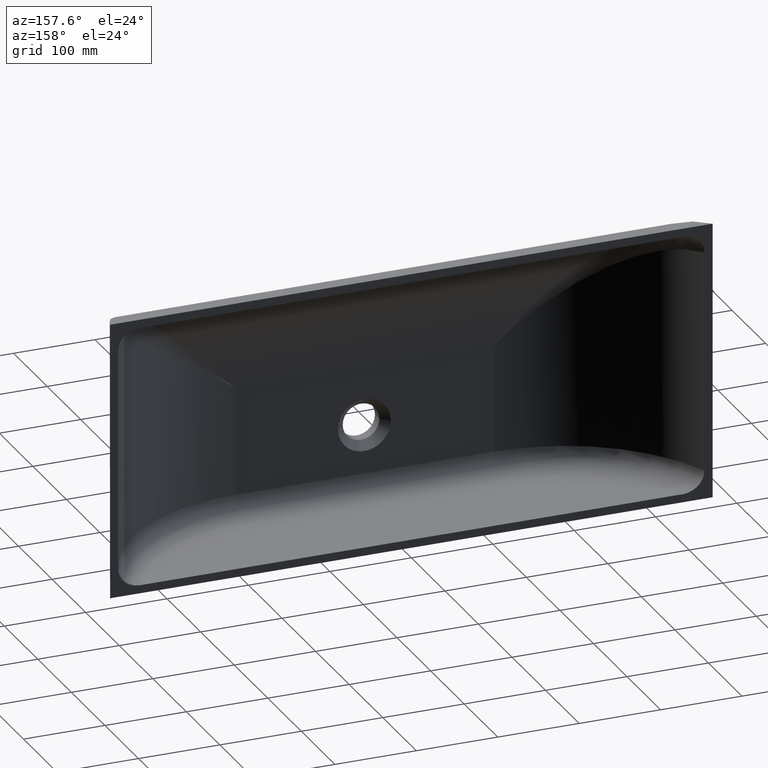
[diagram: clean part render]
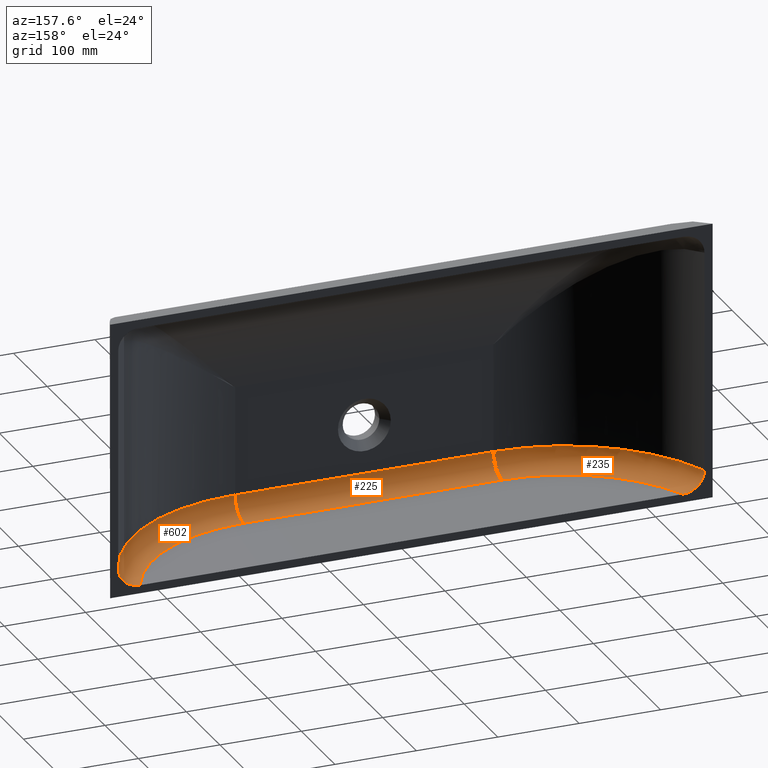
[diagram: same view with one multi-face feature highlighted, each face labeled with its STEP entity id]
A machine part, auxiliary view. The highlighted faces form ONE feature: a constant-radius fillet chain: 3 tangent blend faces with common blend radius 25 mm. The faces share edges in the B-rep.
Their STEP definitions:
[1] entity #235 (Torus):
#5 = ORIENTED_EDGE ( 'NONE', *, *, #909, .F. ) ;
#45 = CARTESIAN_POINT ( 'NONE',  ( -158.6406308044475111, -140.0000000000000000, -60.00000000000000000 ) ) ;
#48 = CARTESIAN_POINT ( 'NONE',  ( -158.6406308044475111, -114.9999999999999858, -60.00000000000000000 ) ) ;
#52 = CIRCLE ( 'NONE', #173, 25.00000000000000000 ) ;
#62 = CARTESIAN_POINT ( 'NONE',  ( -359.0399139386469187, 0.0000000000000000000, -66.70083775692104666 ) ) ;
#72 = CARTESIAN_POINT ( 'NONE',  ( -351.1611666309310067, -0.0000000000000000000, -78.58841101999801992 ) ) ;
#121 = CIRCLE ( 'NONE', #777, 214.8056984386814463 ) ;
#164 = DIRECTION ( 'NONE',  ( 0.0000000000000000000, 0.0000000000000000000, -1.000000000000000000 ) ) ;
#172 = CARTESIAN_POINT ( 'NONE',  ( -359.9999999999998863, 0.0000000000000000000, -61.71661987296787544 ) ) ;
#173 = AXIS2_PLACEMENT_3D ( 'NONE', #48, #501, #955 ) ;
#183 = CARTESIAN_POINT ( 'NONE',  ( -353.8854998833139689, 0.0000000000000000000, -75.92129165977740968 ) ) ;
#191 = CARTESIAN_POINT ( 'NONE',  ( -336.4902040733991271, -0.0000000000000000000, -84.85252241376277027 ) ) ;
#235 = ADVANCED_FACE ( 'NONE', ( #1285 ), #497, .F. ) ;
#271 = CARTESIAN_POINT ( 'NONE',  ( -333.0834886143811104, 0.0000000000000000000, -85.00000000000001421 ) ) ;
#292 = CARTESIAN_POINT ( 'NONE',  ( -354.9746761880625741, -0.0000000000000000000, -74.60223992431073725 ) ) ;
#300 = CARTESIAN_POINT ( 'NONE',  ( -341.4859861520152435, 0.0000000000000000000, -83.78178120603477907 ) ) ;
#311 = DIRECTION ( 'NONE',  ( -0.0000000000000000000, -0.0000000000000000000, 1.000000000000000000 ) ) ;
#362 = CARTESIAN_POINT ( 'NONE',  ( -158.6406308044474827, 74.80569843868146052, -60.00000000000000000 ) ) ;
#401 = CARTESIAN_POINT ( 'NONE',  ( -358.0000461229284952, 0.0000000000000000000, -69.50511991093881647 ) ) ;
#412 = CARTESIAN_POINT ( 'NONE',  ( -346.2177575054271301, -0.0000000000000000000, -81.91599004461072298 ) ) ;
#427 = VERTEX_POINT ( 'NONE', #926 ) ;
#463 = CARTESIAN_POINT ( 'NONE',  ( -359.9999999999999432, 0.0000000000000000000, -60.00000000000000000 ) ) ;
#497 = TOROIDAL_SURFACE ( 'NONE', #555, 189.8056984386814179, 25.00000000000000000 ) ;
#501 = DIRECTION ( 'NONE',  ( -1.000000000000000000, 0.0000000000000000000, -0.0000000000000000000 ) ) ;
#512 = CARTESIAN_POINT ( 'NONE',  ( -358.6306472494943591, -0.0000000000000000000, -67.91769269533502040 ) ) ;
#521 = CARTESIAN_POINT ( 'NONE',  ( -350.5026815536238587, 0.0000000000000000000, -79.12308114760142530 ) ) ;
#555 = AXIS2_PLACEMENT_3D ( 'NONE', #1179, #164, #615 ) ;
#564 = CIRCLE ( 'NONE', #768, 189.8056984386814179 ) ;
#615 = DIRECTION ( 'NONE',  ( -1.000000000000000000, 0.0000000000000000000, 0.0000000000000000000 ) ) ;
#621 = CARTESIAN_POINT ( 'NONE',  ( -359.8134236729908935, -0.0000000000000000000, -63.40105010403754449 ) ) ;
#631 = CARTESIAN_POINT ( 'NONE',  ( -353.0248573223331618, -0.0000000000000000000, -76.86222272598094207 ) ) ;
#634 = EDGE_CURVE ( 'NONE', #427, #1442, #52, .T. ) ;
#640 = CARTESIAN_POINT ( 'NONE',  ( -334.7967668173501465, -0.0000000000000000000, -84.99999999999918998 ) ) ;
#744 = CARTESIAN_POINT ( 'NONE',  ( -354.7096248752375232, 0.0000000000000000000, -74.94044059489576171 ) ) ;
#754 = CARTESIAN_POINT ( 'NONE',  ( -339.8325795105009206, -0.0000000000000000000, -84.22680600285718810 ) ) ;
#764 = DIRECTION ( 'NONE',  ( -1.000000000000000000, 0.0000000000000000000, 0.0000000000000000000 ) ) ;
#768 = AXIS2_PLACEMENT_3D ( 'NONE', #1318, #311, #764 ) ;
#777 = AXIS2_PLACEMENT_3D ( 'NONE', #362, #820, #1262 ) ;
#807 = B_SPLINE_CURVE_WITH_KNOTS ( 'NONE', 3,
 ( #1184, #172, #621, #1082, #62, #512, #968, #1402, #401, #857, #1298, #292, #744, #1193, #183, #631, #1092, #72, #521, #976, #1410, #412, #866, #1308, #300, #754, #1202, #191, #640, #1101 ),
 .UNSPECIFIED., .F., .F.,
 ( 4, 2, 2, 2, 2, 2, 2, 2, 2, 2, 2, 2, 2, 2, 4 ),
 ( 0.0000000000000000000, 0.005074884174763193492, 0.007612326262144790238, 0.008881047305835615066, 0.01014976834952643903, 0.01522465252428985109, 0.01649337356798069587, 0.01776209461167154238, 0.02029953669905323194, 0.02283697878643492149, 0.02537442087381661451, 0.03044930504857997280, 0.03298674713596164154, 0.03552418922334332069, 0.04059907339810666510 ),
 .UNSPECIFIED. ) ;
#820 = DIRECTION ( 'NONE',  ( 0.0000000000000000000, 0.0000000000000000000, -1.000000000000000000 ) ) ;
#844 = EDGE_CURVE ( 'NONE', #1442, #1301, #121, .T. ) ;
#857 = CARTESIAN_POINT ( 'NONE',  ( -357.1130189481752382, -0.0000000000000000000, -71.43280911382289844 ) ) ;
#866 = CARTESIAN_POINT ( 'NONE',  ( -344.6882239388528433, 0.0000000000000000000, -82.64231516237474295 ) ) ;
#871 = ORIENTED_EDGE ( 'NONE', *, *, #634, .F. ) ;
#909 = EDGE_CURVE ( 'NONE', #1301, #1414, #807, .T. ) ;
#926 = CARTESIAN_POINT ( 'NONE',  ( -158.6406308044475111, -114.9999999999999858, -85.00000000000001421 ) ) ;
#955 = DIRECTION ( 'NONE',  ( 0.0000000000000000000, 0.0000000000000000000, 1.000000000000000000 ) ) ;
#968 = CARTESIAN_POINT ( 'NONE',  ( -358.4827404581737369, 0.0000000000000000000, -68.32104275294210538 ) ) ;
#976 = CARTESIAN_POINT ( 'NONE',  ( -349.1300258887967516, -0.0000000000000000000, -80.13154753985712375 ) ) ;
#1076 = EDGE_CURVE ( 'NONE', #1414, #427, #564, .T. ) ;
#1082 = CARTESIAN_POINT ( 'NONE',  ( -359.2668976767018307, -0.0000000000000000000, -65.88168887244114558 ) ) ;
#1092 = CARTESIAN_POINT ( 'NONE',  ( -352.4222519565458924, 0.0000000000000000000, -77.45797901204406344 ) ) ;
#1096 = ORIENTED_EDGE ( 'NONE', *, *, #1076, .F. ) ;
#1101 = CARTESIAN_POINT ( 'NONE',  ( -333.0834886143811104, 0.0000000000000000000, -85.00000000000001421 ) ) ;
#1179 = CARTESIAN_POINT ( 'NONE',  ( -158.6406308044474827, 74.80569843868146052, -60.00000000000000000 ) ) ;
#1184 = CARTESIAN_POINT ( 'NONE',  ( -359.9999999999999432, 0.0000000000000000000, -60.00000000000000000 ) ) ;
#1193 = CARTESIAN_POINT ( 'NONE',  ( -354.1651568503348244, -0.0000000000000000000, -75.59975101753414606 ) ) ;
#1202 = CARTESIAN_POINT ( 'NONE',  ( -339.0007146480575670, 0.0000000000000000000, -84.41095270668880346 ) ) ;
#1262 = DIRECTION ( 'NONE',  ( -1.000000000000000000, 0.0000000000000000000, 0.0000000000000000000 ) ) ;
#1285 = FACE_OUTER_BOUND ( 'NONE', #1337, .T. ) ;
#1298 = CARTESIAN_POINT ( 'NONE',  ( -356.2478330782238345, -0.0000000000000000000, -72.88868853015544857 ) ) ;
#1301 = VERTEX_POINT ( 'NONE', #463 ) ;
#1308 = CARTESIAN_POINT ( 'NONE',  ( -342.2994484719005754, -0.0000000000000000000, -83.52293748964234510 ) ) ;
#1318 = CARTESIAN_POINT ( 'NONE',  ( -158.6406308044474827, 74.80569843868146052, -85.00000000000001421 ) ) ;
#1337 = EDGE_LOOP ( 'NONE', ( #5, #1409, #871, #1096 ) ) ;
#1402 = CARTESIAN_POINT ( 'NONE',  ( -358.1676376970904130, -0.0000000000000000000, -69.11413955050241498 ) ) ;
#1409 = ORIENTED_EDGE ( 'NONE', *, *, #844, .F. ) ;
#1410 = CARTESIAN_POINT ( 'NONE',  ( -348.4127165787937201, 0.0000000000000000000, -80.60687892571208124 ) ) ;
#1414 = VERTEX_POINT ( 'NONE', #271 ) ;
#1442 = VERTEX_POINT ( 'NONE', #45 ) ;
[2] entity #225 (Cylinder):
#2 = VECTOR ( 'NONE', #633, 1000.000000000000000 ) ;
#34 = EDGE_CURVE ( 'NONE', #427, #319, #1195, .T. ) ;
#44 = DIRECTION ( 'NONE',  ( 0.0000000000000000000, 1.000000000000000000, 0.0000000000000000000 ) ) ;
#45 = CARTESIAN_POINT ( 'NONE',  ( -158.6406308044475111, -140.0000000000000000, -60.00000000000000000 ) ) ;
#48 = CARTESIAN_POINT ( 'NONE',  ( -158.6406308044475111, -114.9999999999999858, -60.00000000000000000 ) ) ;
#52 = CIRCLE ( 'NONE', #173, 25.00000000000000000 ) ;
#75 = EDGE_LOOP ( 'NONE', ( #1181, #1002, #1354, #1071 ) ) ;
#154 = CYLINDRICAL_SURFACE ( 'NONE', #450, 24.99999999999999289 ) ;
#173 = AXIS2_PLACEMENT_3D ( 'NONE', #48, #501, #955 ) ;
#184 = CARTESIAN_POINT ( 'NONE',  ( 500000.0000000000582, -114.9999999999069473, -85.00000000000001421 ) ) ;
#225 = ADVANCED_FACE ( 'NONE', ( #1171 ), #154, .F. ) ;
#248 = DIRECTION ( 'NONE',  ( -1.000000000000000000, -1.861033808554953347E-16, -0.0000000000000000000 ) ) ;
#316 = DIRECTION ( 'NONE',  ( 1.000000000000000000, 0.0000000000000000000, 0.0000000000000000000 ) ) ;
#319 = VERTEX_POINT ( 'NONE', #535 ) ;
#427 = VERTEX_POINT ( 'NONE', #926 ) ;
#450 = AXIS2_PLACEMENT_3D ( 'NONE', #605, #1064, #44 ) ;
#501 = DIRECTION ( 'NONE',  ( -1.000000000000000000, 0.0000000000000000000, -0.0000000000000000000 ) ) ;
#535 = CARTESIAN_POINT ( 'NONE',  ( 158.6406308044475111, -114.9999999999999858, -85.00000000000001421 ) ) ;
#605 = CARTESIAN_POINT ( 'NONE',  ( 500000.0000000000582, -114.9999999999069473, -60.00000000000000000 ) ) ;
#616 = CIRCLE ( 'NONE', #1249, 24.99999999999999289 ) ;
#633 = DIRECTION ( 'NONE',  ( 1.000000000000000000, 1.861033808554954086E-16, 0.0000000000000000000 ) ) ;
#634 = EDGE_CURVE ( 'NONE', #427, #1442, #52, .T. ) ;
#679 = EDGE_CURVE ( 'NONE', #991, #319, #616, .T. ) ;
#767 = EDGE_CURVE ( 'NONE', #991, #1442, #812, .T. ) ;
#772 = DIRECTION ( 'NONE',  ( 0.0000000000000000000, 0.0000000000000000000, -1.000000000000000000 ) ) ;
#812 = LINE ( 'NONE', #1254, #841 ) ;
#841 = VECTOR ( 'NONE', #248, 1000.000000000000000 ) ;
#926 = CARTESIAN_POINT ( 'NONE',  ( -158.6406308044475111, -114.9999999999999858, -85.00000000000001421 ) ) ;
#955 = DIRECTION ( 'NONE',  ( 0.0000000000000000000, 0.0000000000000000000, 1.000000000000000000 ) ) ;
#970 = CARTESIAN_POINT ( 'NONE',  ( 158.6406308044475111, -140.0000000000000000, -60.00000000000000000 ) ) ;
#991 = VERTEX_POINT ( 'NONE', #970 ) ;
#1002 = ORIENTED_EDGE ( 'NONE', *, *, #767, .F. ) ;
#1064 = DIRECTION ( 'NONE',  ( 1.000000000000000000, 1.861033808554953593E-16, 0.0000000000000000000 ) ) ;
#1071 = ORIENTED_EDGE ( 'NONE', *, *, #34, .F. ) ;
#1171 = FACE_OUTER_BOUND ( 'NONE', #75, .T. ) ;
#1181 = ORIENTED_EDGE ( 'NONE', *, *, #634, .T. ) ;
#1195 = LINE ( 'NONE', #184, #2 ) ;
#1249 = AXIS2_PLACEMENT_3D ( 'NONE', #1323, #316, #772 ) ;
#1254 = CARTESIAN_POINT ( 'NONE',  ( -158.6406308044474827, -140.0000000000000000, -60.00000000000000000 ) ) ;
#1323 = CARTESIAN_POINT ( 'NONE',  ( 158.6406308044475111, -115.0000000000000426, -60.00000000000000000 ) ) ;
#1354 = ORIENTED_EDGE ( 'NONE', *, *, #679, .T. ) ;
#1442 = VERTEX_POINT ( 'NONE', #45 ) ;
[3] entity #602 (Torus):
#29 = CARTESIAN_POINT ( 'NONE',  ( 348.3895411528305317, -0.0000000000000000000, -80.62143452831799095 ) ) ;
#38 = CARTESIAN_POINT ( 'NONE',  ( 359.0686564458361545, -0.0000000000000000000, -66.76503196918336869 ) ) ;
#140 = CARTESIAN_POINT ( 'NONE',  ( 342.6761017257804269, 0.0000000000000000000, -83.38376121986615885 ) ) ;
#148 = CARTESIAN_POINT ( 'NONE',  ( 357.4471733484225524, -0.0000000000000000000, -70.67796711995694636 ) ) ;
#177 = ORIENTED_EDGE ( 'NONE', *, *, #679, .F. ) ;
#211 = CIRCLE ( 'NONE', #569, 189.8056984386814747 ) ;
#255 = CARTESIAN_POINT ( 'NONE',  ( 341.0463218983089746, -0.0000000000000000000, -83.90048100848551371 ) ) ;
#256 = CARTESIAN_POINT ( 'NONE',  ( 158.6406308044473974, 74.80569843868146052, -85.00000000000001421 ) ) ;
#264 = CARTESIAN_POINT ( 'NONE',  ( 356.1803518207477168, 0.0000000000000000000, -72.91272993035808270 ) ) ;
#273 = DIRECTION ( 'NONE',  ( -1.000000000000000000, 0.0000000000000000000, 0.0000000000000000000 ) ) ;
#296 = EDGE_LOOP ( 'NONE', ( #1401, #862, #177, #671 ) ) ;
#316 = DIRECTION ( 'NONE',  ( 1.000000000000000000, 0.0000000000000000000, 0.0000000000000000000 ) ) ;
#319 = VERTEX_POINT ( 'NONE', #535 ) ;
#329 = AXIS2_PLACEMENT_3D ( 'NONE', #1432, #433, #891 ) ;
#360 = CARTESIAN_POINT ( 'NONE',  ( 336.4889488037461547, 3.408658232435682890E-27, -84.85221555243336411 ) ) ;
#369 = CARTESIAN_POINT ( 'NONE',  ( 353.0468653776340489, -0.0000000000000000000, -76.90002911540658204 ) ) ;
#379 = CARTESIAN_POINT ( 'NONE',  ( 360.0000000000000000, -0.0000000000000000000, -60.85965492189079384 ) ) ;
#433 = DIRECTION ( 'NONE',  ( 0.0000000000000000000, 0.0000000000000000000, -1.000000000000000000 ) ) ;
#437 = AXIS2_PLACEMENT_3D ( 'NONE', #838, #1280, #273 ) ;
#479 = CARTESIAN_POINT ( 'NONE',  ( 349.0962205603117923, 0.0000000000000000000, -80.15468116641021368 ) ) ;
#488 = CARTESIAN_POINT ( 'NONE',  ( 359.6235899812842831, -0.0000000000000000000, -64.27057381929479618 ) ) ;
#535 = CARTESIAN_POINT ( 'NONE',  ( 158.6406308044475111, -114.9999999999999858, -85.00000000000001421 ) ) ;
#569 = AXIS2_PLACEMENT_3D ( 'NONE', #256, #703, #1159 ) ;
#590 = CARTESIAN_POINT ( 'NONE',  ( 344.6828001676360600, -0.0000000000000000000, -82.64557072959624406 ) ) ;
#598 = CARTESIAN_POINT ( 'NONE',  ( 357.6357226451913789, 0.0000000000000000000, -70.29593999696335516 ) ) ;
#602 = ADVANCED_FACE ( 'NONE', ( #946 ), #1356, .F. ) ;
#616 = CIRCLE ( 'NONE', #1249, 24.99999999999999289 ) ;
#660 = VERTEX_POINT ( 'NONE', #730 ) ;
#671 = ORIENTED_EDGE ( 'NONE', *, *, #713, .F. ) ;
#679 = EDGE_CURVE ( 'NONE', #991, #319, #616, .T. ) ;
#702 = CARTESIAN_POINT ( 'NONE',  ( 341.4551212262263107, 0.0000000000000000000, -83.78101600029522444 ) ) ;
#703 = DIRECTION ( 'NONE',  ( -0.0000000000000000000, -0.0000000000000000000, 1.000000000000000000 ) ) ;
#711 = CARTESIAN_POINT ( 'NONE',  ( 356.8378277319164340, -0.0000000000000000000, -71.81001077385758435 ) ) ;
#713 = EDGE_CURVE ( 'NONE', #660, #991, #1138, .T. ) ;
#730 = CARTESIAN_POINT ( 'NONE',  ( 359.9999999999999432, 0.0000000000000000000, -60.00000000000000000 ) ) ;
#772 = DIRECTION ( 'NONE',  ( 0.0000000000000000000, 0.0000000000000000000, -1.000000000000000000 ) ) ;
#818 = CARTESIAN_POINT ( 'NONE',  ( 338.9882169067009272, -0.0000000000000000000, -84.41341266595517823 ) ) ;
#827 = CARTESIAN_POINT ( 'NONE',  ( 354.1895679334932083, 0.0000000000000000000, -75.65353407801406149 ) ) ;
#836 = CARTESIAN_POINT ( 'NONE',  ( 359.9999999999999432, 0.0000000000000000000, -60.00000000000000000 ) ) ;
#838 = CARTESIAN_POINT ( 'NONE',  ( 158.6406308044473974, 74.80569843868146052, -60.00000000000000000 ) ) ;
#853 = EDGE_CURVE ( 'NONE', #319, #1324, #211, .T. ) ;
#862 = ORIENTED_EDGE ( 'NONE', *, *, #853, .F. ) ;
#891 = DIRECTION ( 'NONE',  ( -1.000000000000000000, 0.0000000000000000000, 0.0000000000000000000 ) ) ;
#920 = CARTESIAN_POINT ( 'NONE',  ( 333.0834886143811673, 0.0000000000000000000, -85.00000000000001421 ) ) ;
#936 = CARTESIAN_POINT ( 'NONE',  ( 350.4693002451167558, -0.0000000000000000000, -79.14922701247084547 ) ) ;
#944 = CARTESIAN_POINT ( 'NONE',  ( 359.7650612715473812, 0.0000000000000000000, -63.42001095077102946 ) ) ;
#946 = FACE_OUTER_BOUND ( 'NONE', #296, .T. ) ;
#970 = CARTESIAN_POINT ( 'NONE',  ( 158.6406308044475111, -140.0000000000000000, -60.00000000000000000 ) ) ;
#991 = VERTEX_POINT ( 'NONE', #970 ) ;
#1019 = B_SPLINE_CURVE_WITH_KNOTS ( 'NONE', 3,
 ( #1042, #1364, #360, #818, #1261, #255, #702, #1157, #140, #590, #1051, #29, #479, #936, #1372, #369, #827, #1269, #264, #711, #1165, #148, #598, #1058, #38, #488, #944, #1382, #379, #836 ),
 .UNSPECIFIED., .F., .F.,
 ( 4, 2, 2, 2, 2, 2, 2, 2, 2, 2, 2, 2, 2, 2, 4 ),
 ( 2.048553748347995105E-14, 0.005074824284124657310, 0.007612236426176742857, 0.008880942497202786931, 0.01014964856822882927, 0.01522447285233335251, 0.01776188499438561760, 0.02029929713643787922, 0.02537412142054249614, 0.02791153356259480633, 0.02918023963362094408, 0.03044894570464708183, 0.03552376998875152875, 0.03806118213080376955, 0.04059859427285599648 ),
 .UNSPECIFIED. ) ;
#1042 = CARTESIAN_POINT ( 'NONE',  ( 333.0834886143811673, 0.0000000000000000000, -85.00000000000001421 ) ) ;
#1051 = CARTESIAN_POINT ( 'NONE',  ( 346.2115587294923102, -0.0000000000000000000, -81.91819346273479141 ) ) ;
#1058 = CARTESIAN_POINT ( 'NONE',  ( 358.5253370463913711, -0.0000000000000000000, -68.36715573414403480 ) ) ;
#1138 = CIRCLE ( 'NONE', #329, 214.8056984386814747 ) ;
#1157 = CARTESIAN_POINT ( 'NONE',  ( 342.2695050672462003, -0.0000000000000000000, -83.52285559477631693 ) ) ;
#1159 = DIRECTION ( 'NONE',  ( -1.000000000000000000, 0.0000000000000000000, 0.0000000000000000000 ) ) ;
#1165 = CARTESIAN_POINT ( 'NONE',  ( 357.0485656920092197, 0.0000000000000000000, -71.43447197357639311 ) ) ;
#1249 = AXIS2_PLACEMENT_3D ( 'NONE', #1323, #316, #772 ) ;
#1261 = CARTESIAN_POINT ( 'NONE',  ( 339.8152177205166140, 0.0000000000000000000, -84.23072450708151848 ) ) ;
#1269 = CARTESIAN_POINT ( 'NONE',  ( 355.7073551750506795, -0.0000000000000000000, -73.61870625463721751 ) ) ;
#1280 = DIRECTION ( 'NONE',  ( 0.0000000000000000000, 0.0000000000000000000, -1.000000000000000000 ) ) ;
#1323 = CARTESIAN_POINT ( 'NONE',  ( 158.6406308044475111, -115.0000000000000426, -60.00000000000000000 ) ) ;
#1324 = VERTEX_POINT ( 'NONE', #920 ) ;
#1356 = TOROIDAL_SURFACE ( 'NONE', #437, 189.8056984386814747, 25.00000000000000000 ) ;
#1364 = CARTESIAN_POINT ( 'NONE',  ( 334.7985715436109899, -4.840572387365682516E-11, -85.00000000000001421 ) ) ;
#1372 = CARTESIAN_POINT ( 'NONE',  ( 351.1393078714874036, 0.0000000000000000000, -78.60701037264574609 ) ) ;
#1380 = EDGE_CURVE ( 'NONE', #1324, #660, #1019, .T. ) ;
#1382 = CARTESIAN_POINT ( 'NONE',  ( 359.9528263636627798, -0.0000000000000000000, -61.71557337262618859 ) ) ;
#1401 = ORIENTED_EDGE ( 'NONE', *, *, #1380, .F. ) ;
#1432 = CARTESIAN_POINT ( 'NONE',  ( 158.6406308044473974, 74.80569843868146052, -60.00000000000000000 ) ) ;